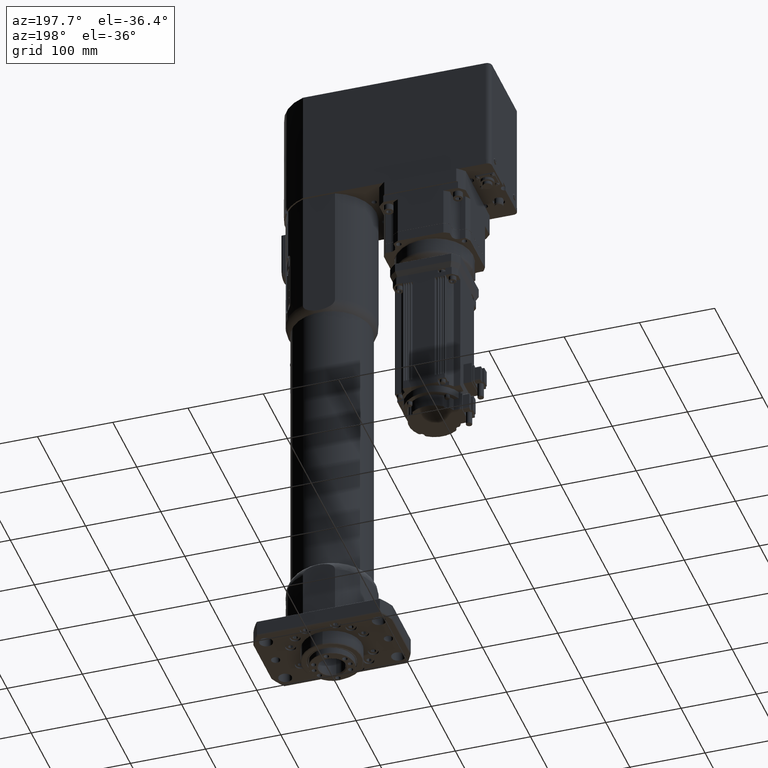
[diagram: clean part render]
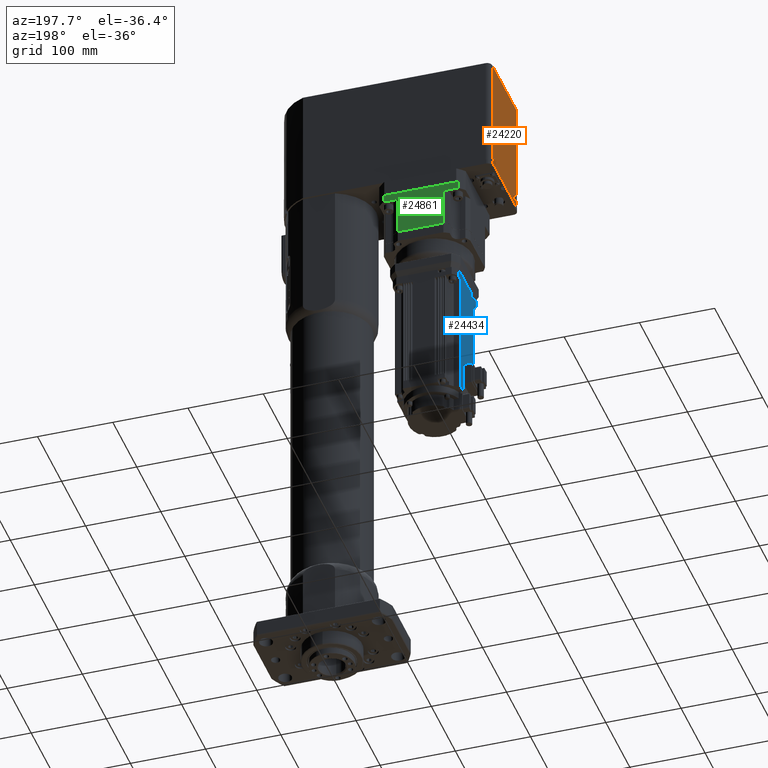
[diagram: same view with three faces highlighted in distinct colors, each labeled with its STEP entity id]
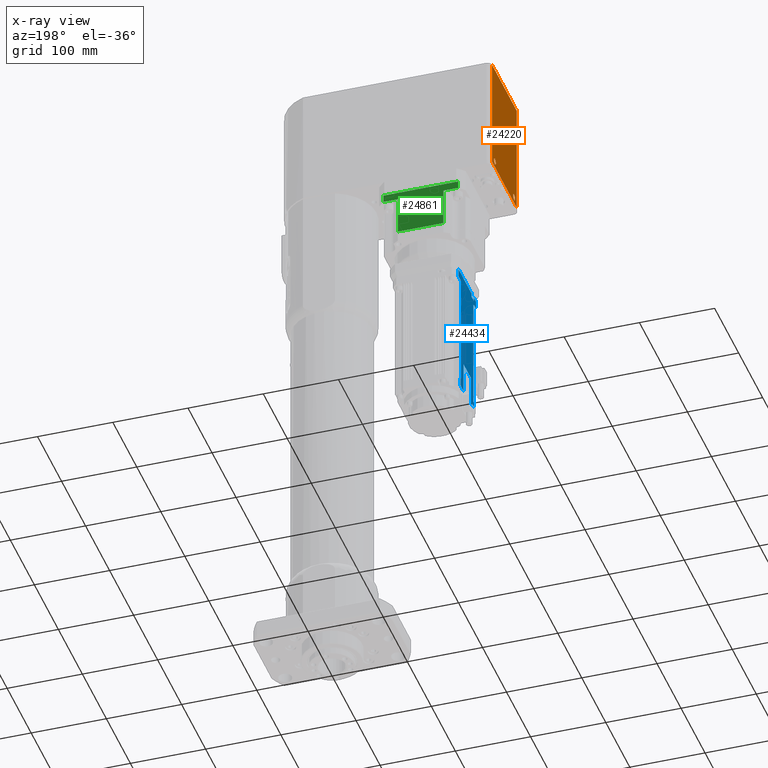
[diagram: x-ray of the same camera — body ghosted, the three highlighted faces saturated]
A machine part, auxiliary view with three faces highlighted in distinct colors.
The next image is the same camera in x-ray (body ghosted, the three faces saturated) — at least one of them is partly hidden behind the body in this view.
Their STEP definitions:

[orange] entity #24220 — the highlighted planar face has unit normal (-1, 0, 0).
#851=LINE('',#37000,#2690);
#858=LINE('',#37017,#2697);
#859=LINE('',#37020,#2698);
#860=LINE('',#37022,#2699);
#861=LINE('',#37024,#2700);
#862=LINE('',#37025,#2701);
#2690=VECTOR('',#29277,10.);
#2697=VECTOR('',#29294,10.);
#2698=VECTOR('',#29297,10.);
#2699=VECTOR('',#29298,10.);
#2700=VECTOR('',#29299,10.);
#2701=VECTOR('',#29300,10.);
#4455=PLANE('',#25982);
#5199=FACE_BOUND('',#7165,.T.);
#5200=FACE_BOUND('',#7166,.T.);
#5702=FACE_OUTER_BOUND('',#7164,.T.);
#7164=EDGE_LOOP('',(#16404,#16405,#16406,#16407,#16408,#16409));
#7165=EDGE_LOOP('',(#16410));
#7166=EDGE_LOOP('',(#16411));
#8936=CIRCLE('',#25983,4.);
#8937=CIRCLE('',#25984,4.);
#10289=VERTEX_POINT('',#36997);
#10290=VERTEX_POINT('',#36999);
#10295=VERTEX_POINT('',#37015);
#10296=VERTEX_POINT('',#37019);
#10297=VERTEX_POINT('',#37021);
#10298=VERTEX_POINT('',#37023);
#10299=VERTEX_POINT('',#37026);
#10300=VERTEX_POINT('',#37028);
#12680=EDGE_CURVE('',#10289,#10290,#851,.T.);
#12689=EDGE_CURVE('',#10295,#10289,#858,.T.);
#12690=EDGE_CURVE('',#10295,#10296,#859,.T.);
#12691=EDGE_CURVE('',#10296,#10297,#860,.T.);
#12692=EDGE_CURVE('',#10297,#10298,#861,.T.);
#12693=EDGE_CURVE('',#10298,#10290,#862,.T.);
#12694=EDGE_CURVE('',#10299,#10299,#8936,.T.);
#12695=EDGE_CURVE('',#10300,#10300,#8937,.T.);
#16404=ORIENTED_EDGE('',*,*,#12690,.T.);
#16405=ORIENTED_EDGE('',*,*,#12691,.T.);
#16406=ORIENTED_EDGE('',*,*,#12692,.T.);
#16407=ORIENTED_EDGE('',*,*,#12693,.T.);
#16408=ORIENTED_EDGE('',*,*,#12680,.F.);
#16409=ORIENTED_EDGE('',*,*,#12689,.F.);
#16410=ORIENTED_EDGE('',*,*,#12694,.T.);
#16411=ORIENTED_EDGE('',*,*,#12695,.T.);
#24220=ADVANCED_FACE('',(#5702,#5199,#5200),#4455,.T.);
#25982=AXIS2_PLACEMENT_3D('',#37018,#29295,#29296);
#25983=AXIS2_PLACEMENT_3D('',#37027,#29301,#29302);
#25984=AXIS2_PLACEMENT_3D('',#37029,#29303,#29304);
#29277=DIRECTION('',(-1.97180287814662E-12,-1.,-3.5705816722566E-28));
#29294=DIRECTION('',(3.1961401072142E-15,-6.65916933142317E-27,1.));
#29295=DIRECTION('center_axis',(-1.,1.97180287814662E-12,3.1961401072142E-15));
#29296=DIRECTION('ref_axis',(-1.97246663447004E-12,-1.,0.));
#29297=DIRECTION('',(-1.97180287814662E-12,-1.,-3.5705816722566E-28));
#29298=DIRECTION('',(-1.97180287814662E-12,-1.,-3.5705816722566E-28));
#29299=DIRECTION('',(-1.97180287814662E-12,-1.,-3.5705816722566E-28));
#29300=DIRECTION('',(3.1961401072142E-15,-6.65916933142317E-27,1.));
#29301=DIRECTION('center_axis',(1.,-1.97180287814662E-12,-3.1961401072142E-15));
#29302=DIRECTION('ref_axis',(6.49363334737654E-13,0.327803490764427,0.944745929571891));
#29303=DIRECTION('center_axis',(1.,-1.97180287814662E-12,-3.1961401072142E-15));
#29304=DIRECTION('ref_axis',(1.59379391759427E-12,0.809270043725601,-0.587436801986702));
#36997=CARTESIAN_POINT('',(-228.999999999893,50.90000000057,832.000000000005));
#36999=CARTESIAN_POINT('',(-229.000000000093,-50.8999999994297,832.000000000005));
#37000=CARTESIAN_POINT('',(-228.999999999893,50.90000000057,832.000000000005));
#37015=CARTESIAN_POINT('',(-228.999999999893,50.90000000057,680.000000000005));
#37017=CARTESIAN_POINT('',(-228.999999999893,50.90000000057,680.000000000005));
#37018=CARTESIAN_POINT('Origin',(-228.999999999893,50.90000000057,680.000000000005));
#37019=CARTESIAN_POINT('',(-229.000000000004,4.50000000056781,680.000000000005));
#37020=CARTESIAN_POINT('',(-228.999999999893,50.90000000057,680.000000000005));
#37021=CARTESIAN_POINT('',(-229.000000000022,-4.49999999943219,680.000000000005));
#37022=CARTESIAN_POINT('',(-228.999999999893,50.90000000057,680.000000000005));
#37023=CARTESIAN_POINT('',(-229.000000000094,-50.8999999994297,680.000000000005));
#37024=CARTESIAN_POINT('',(-228.999999999893,50.90000000057,680.000000000005));
#37025=CARTESIAN_POINT('',(-229.000000000094,-50.8999999994297,680.000000000005));
#37026=CARTESIAN_POINT('',(-229.00000000007,-38.6887860363888,691.778977877664));
#37027=CARTESIAN_POINT('Origin',(-229.000000000072,-39.9999999994465,687.999994159377));
#37028=CARTESIAN_POINT('',(-228.999999999908,43.2370801754447,685.650245407388));
#37029=CARTESIAN_POINT('Origin',(-228.999999999915,40.0000000005423,687.999992615335));

[blue] entity #24434 — the highlighted planar face has unit normal (-1, 0, -0).
#984=LINE('',#37418,#2823);
#987=LINE('',#37430,#2826);
#1010=LINE('',#37500,#2849);
#1013=LINE('',#37508,#2852);
#1015=LINE('',#37512,#2854);
#1308=LINE('',#38313,#3147);
#1312=LINE('',#38321,#3151);
#1320=LINE('',#38339,#3159);
#1324=LINE('',#38345,#3163);
#1325=LINE('',#38348,#3164);
#1327=LINE('',#38351,#3166);
#1328=LINE('',#38357,#3167);
#1331=LINE('',#38362,#3170);
#1345=LINE('',#38453,#3184);
#1346=LINE('',#38455,#3185);
#1347=LINE('',#38456,#3186);
#1348=LINE('',#38457,#3187);
#1349=LINE('',#38459,#3188);
#1350=LINE('',#38460,#3189);
#1351=LINE('',#38462,#3190);
#1352=LINE('',#38463,#3191);
#1353=LINE('',#38464,#3192);
#1354=LINE('',#38467,#3193);
#1355=LINE('',#38469,#3194);
#1356=LINE('',#38471,#3195);
#1357=LINE('',#38472,#3196);
#1358=LINE('',#38475,#3197);
#1359=LINE('',#38477,#3198);
#1360=LINE('',#38479,#3199);
#1361=LINE('',#38480,#3200);
#2823=VECTOR('',#29744,10.);
#2826=VECTOR('',#29755,10.);
#2849=VECTOR('',#29820,10.);
#2852=VECTOR('',#29827,10.);
#2854=VECTOR('',#29831,10.);
#3147=VECTOR('',#30526,10.);
#3151=VECTOR('',#30532,10.);
#3159=VECTOR('',#30544,10.);
#3163=VECTOR('',#30550,10.);
#3164=VECTOR('',#30553,10.);
#3166=VECTOR('',#30557,10.);
#3167=VECTOR('',#30564,10.);
#3170=VECTOR('',#30569,10.);
#3184=VECTOR('',#30671,10.);
#3185=VECTOR('',#30672,10.);
#3186=VECTOR('',#30673,10.);
#3187=VECTOR('',#30674,10.);
#3188=VECTOR('',#30675,10.);
#3189=VECTOR('',#30676,10.);
#3190=VECTOR('',#30677,10.);
#3191=VECTOR('',#30678,10.);
#3192=VECTOR('',#30679,10.);
#3193=VECTOR('',#30680,10.);
#3194=VECTOR('',#30681,10.);
#3195=VECTOR('',#30682,10.);
#3196=VECTOR('',#30683,10.);
#3197=VECTOR('',#30684,10.);
#3198=VECTOR('',#30685,10.);
#3199=VECTOR('',#30686,10.);
#3200=VECTOR('',#30687,10.);
#4628=PLANE('',#26426);
#5224=FACE_BOUND('',#7404,.T.);
#5225=FACE_BOUND('',#7405,.T.);
#5916=FACE_OUTER_BOUND('',#7403,.T.);
#7403=EDGE_LOOP('',(#17529,#17530,#17531,#17532,#17533,#17534,#17535,#17536,
#17537,#17538,#17539,#17540,#17541,#17542,#17543,#17544,#17545,#17546,#17547,
#17548,#17549,#17550));
#7404=EDGE_LOOP('',(#17551,#17552,#17553,#17554));
#7405=EDGE_LOOP('',(#17555,#17556,#17557,#17558));
#10407=VERTEX_POINT('',#37415);
#10408=VERTEX_POINT('',#37417);
#10410=VERTEX_POINT('',#37423);
#10413=VERTEX_POINT('',#37428);
#10437=VERTEX_POINT('',#37494);
#10439=VERTEX_POINT('',#37498);
#10442=VERTEX_POINT('',#37505);
#10443=VERTEX_POINT('',#37510);
#10749=VERTEX_POINT('',#38310);
#10750=VERTEX_POINT('',#38312);
#10752=VERTEX_POINT('',#38318);
#10753=VERTEX_POINT('',#38320);
#10754=VERTEX_POINT('',#38324);
#10759=VERTEX_POINT('',#38333);
#10760=VERTEX_POINT('',#38337);
#10761=VERTEX_POINT('',#38338);
#10762=VERTEX_POINT('',#38343);
#10763=VERTEX_POINT('',#38347);
#10799=VERTEX_POINT('',#38452);
#10800=VERTEX_POINT('',#38454);
#10801=VERTEX_POINT('',#38458);
#10802=VERTEX_POINT('',#38461);
#10803=VERTEX_POINT('',#38465);
#10804=VERTEX_POINT('',#38466);
#10805=VERTEX_POINT('',#38468);
#10806=VERTEX_POINT('',#38470);
#10807=VERTEX_POINT('',#38473);
#10808=VERTEX_POINT('',#38474);
#10809=VERTEX_POINT('',#38476);
#10810=VERTEX_POINT('',#38478);
#12888=EDGE_CURVE('',#10407,#10408,#984,.T.);
#12894=EDGE_CURVE('',#10410,#10413,#987,.T.);
#12928=EDGE_CURVE('',#10437,#10439,#1010,.T.);
#12932=EDGE_CURVE('',#10442,#10437,#1013,.T.);
#12934=EDGE_CURVE('',#10439,#10443,#1015,.T.);
#13334=EDGE_CURVE('',#10749,#10750,#1308,.T.);
#13338=EDGE_CURVE('',#10752,#10753,#1312,.T.);
#13346=EDGE_CURVE('',#10760,#10761,#1320,.T.);
#13350=EDGE_CURVE('',#10759,#10762,#1324,.T.);
#13351=EDGE_CURVE('',#10763,#10754,#1325,.T.);
#13353=EDGE_CURVE('',#10753,#10749,#1327,.T.);
#13356=EDGE_CURVE('',#10750,#10762,#1328,.T.);
#13359=EDGE_CURVE('',#10763,#10761,#1331,.T.);
#13406=EDGE_CURVE('',#10754,#10799,#1345,.T.);
#13407=EDGE_CURVE('',#10799,#10800,#1346,.T.);
#13408=EDGE_CURVE('',#10800,#10759,#1347,.T.);
#13409=EDGE_CURVE('',#10408,#10752,#1348,.T.);
#13410=EDGE_CURVE('',#10407,#10801,#1349,.T.);
#13411=EDGE_CURVE('',#10801,#10442,#1350,.T.);
#13412=EDGE_CURVE('',#10443,#10802,#1351,.T.);
#13413=EDGE_CURVE('',#10802,#10410,#1352,.T.);
#13414=EDGE_CURVE('',#10760,#10413,#1353,.T.);
#13415=EDGE_CURVE('',#10803,#10804,#1354,.T.);
#13416=EDGE_CURVE('',#10805,#10804,#1355,.T.);
#13417=EDGE_CURVE('',#10806,#10805,#1356,.T.);
#13418=EDGE_CURVE('',#10803,#10806,#1357,.T.);
#13419=EDGE_CURVE('',#10807,#10808,#1358,.T.);
#13420=EDGE_CURVE('',#10809,#10808,#1359,.T.);
#13421=EDGE_CURVE('',#10810,#10809,#1360,.T.);
#13422=EDGE_CURVE('',#10807,#10810,#1361,.T.);
#17529=ORIENTED_EDGE('',*,*,#13406,.T.);
#17530=ORIENTED_EDGE('',*,*,#13407,.T.);
#17531=ORIENTED_EDGE('',*,*,#13408,.T.);
#17532=ORIENTED_EDGE('',*,*,#13350,.T.);
#17533=ORIENTED_EDGE('',*,*,#13356,.F.);
#17534=ORIENTED_EDGE('',*,*,#13334,.F.);
#17535=ORIENTED_EDGE('',*,*,#13353,.F.);
#17536=ORIENTED_EDGE('',*,*,#13338,.F.);
#17537=ORIENTED_EDGE('',*,*,#13409,.F.);
#17538=ORIENTED_EDGE('',*,*,#12888,.F.);
#17539=ORIENTED_EDGE('',*,*,#13410,.T.);
#17540=ORIENTED_EDGE('',*,*,#13411,.T.);
#17541=ORIENTED_EDGE('',*,*,#12932,.T.);
#17542=ORIENTED_EDGE('',*,*,#12928,.T.);
#17543=ORIENTED_EDGE('',*,*,#12934,.T.);
#17544=ORIENTED_EDGE('',*,*,#13412,.T.);
#17545=ORIENTED_EDGE('',*,*,#13413,.T.);
#17546=ORIENTED_EDGE('',*,*,#12894,.T.);
#17547=ORIENTED_EDGE('',*,*,#13414,.F.);
#17548=ORIENTED_EDGE('',*,*,#13346,.T.);
#17549=ORIENTED_EDGE('',*,*,#13359,.F.);
#17550=ORIENTED_EDGE('',*,*,#13351,.T.);
#17551=ORIENTED_EDGE('',*,*,#13415,.T.);
#17552=ORIENTED_EDGE('',*,*,#13416,.F.);
#17553=ORIENTED_EDGE('',*,*,#13417,.F.);
#17554=ORIENTED_EDGE('',*,*,#13418,.F.);
#17555=ORIENTED_EDGE('',*,*,#13419,.T.);
#17556=ORIENTED_EDGE('',*,*,#13420,.F.);
#17557=ORIENTED_EDGE('',*,*,#13421,.F.);
#17558=ORIENTED_EDGE('',*,*,#13422,.F.);
#24434=ADVANCED_FACE('',(#5916,#5224,#5225),#4628,.T.);
#26426=AXIS2_PLACEMENT_3D('',#38451,#30669,#30670);
#29744=DIRECTION('',(2.26052957917011E-15,-4.93038065763132E-31,-1.));
#29755=DIRECTION('',(2.26052957917011E-15,-4.93038065763132E-31,-1.));
#29820=DIRECTION('',(1.43720279024793E-12,1.,3.24833199247382E-27));
#29827=DIRECTION('',(2.26052957917011E-15,-4.93038065763132E-31,-1.));
#29831=DIRECTION('',(-2.26052957917011E-15,4.93038065763132E-31,1.));
#30526=DIRECTION('',(2.26052957917011E-15,-4.93038065763132E-31,-1.));
#30532=DIRECTION('',(2.26052957917011E-15,-4.93038065763132E-31,-1.));
#30544=DIRECTION('',(2.26052957917011E-15,-4.93038065763132E-31,-1.));
#30550=DIRECTION('',(2.26052957917011E-15,-4.93038065763132E-31,-1.));
#30553=DIRECTION('',(-2.26052957917011E-15,4.93038065763132E-31,1.));
#30557=DIRECTION('',(1.43784983919202E-12,1.,3.24981110667111E-27));
#30564=DIRECTION('',(1.43188635551689E-12,1.,3.2363018636692E-27));
#30569=DIRECTION('',(1.43755377971879E-12,1.,3.24912085337904E-27));
#30669=DIRECTION('center_axis',(-1.,1.43720279024793E-12,-2.26052957917011E-15));
#30670=DIRECTION('ref_axis',(1.43813849717844E-12,1.,0.));
#30671=DIRECTION('',(-2.26052957917011E-15,2.95822839457879E-31,1.));
#30672=DIRECTION('',(-1.43720279024793E-12,-1.,5.92118946463502E-16));
#30673=DIRECTION('',(2.26052957917011E-15,-2.95822839457879E-31,-1.));
#30674=DIRECTION('',(1.43720279024793E-12,1.,3.24833199247382E-27));
#30675=DIRECTION('',(1.43720279024793E-12,1.,3.24833199247382E-27));
#30676=DIRECTION('',(1.43720279024793E-12,1.,3.24833199247382E-27));
#30677=DIRECTION('',(1.43720279024793E-12,1.,3.24833199247382E-27));
#30678=DIRECTION('',(1.43720279024793E-12,1.,3.24833199247382E-27));
#30679=DIRECTION('',(1.43720279024793E-12,1.,3.24833199247382E-27));
#30680=DIRECTION('',(-1.43720279024793E-12,-1.,-3.24852920770013E-27));
#30681=DIRECTION('',(-2.26052957923362E-15,-4.41912301958641E-14,1.));
#30682=DIRECTION('',(-1.43720279024793E-12,-1.,-3.24852920770013E-27));
#30683=DIRECTION('',(2.26052957910049E-15,-4.84434569437748E-14,-1.));
#30684=DIRECTION('',(1.43720279024793E-12,1.,3.24852920770013E-27));
#30685=DIRECTION('',(2.2605295791062E-15,-4.44669718621109E-14,-1.));
#30686=DIRECTION('',(1.43720279024793E-12,1.,3.24852920770013E-27));
#30687=DIRECTION('',(-2.26052957923936E-15,-4.81822279968042E-14,1.));
#37415=CARTESIAN_POINT('',(-179.500000000063,-36.834087473015,532.500000000004));
#37417=CARTESIAN_POINT('',(-179.500000000063,-36.834087473015,521.500000000005));
#37418=CARTESIAN_POINT('',(-179.500000000063,-36.834087473015,532.500000000004));
#37423=CARTESIAN_POINT('',(-179.499999999957,36.834087473837,532.500000000004));
#37428=CARTESIAN_POINT('',(-179.499999999957,36.834087473837,521.500000000004));
#37430=CARTESIAN_POINT('',(-179.499999999957,36.834087473837,532.500000000004));
#37494=CARTESIAN_POINT('',(-179.500000000051,-28.499999999589,527.500000000004));
#37498=CARTESIAN_POINT('',(-179.500000000036,-18.499999999589,527.500000000004));
#37500=CARTESIAN_POINT('',(-179.500000000053,-30.167043736302,527.500000000004));
#37505=CARTESIAN_POINT('',(-179.500000000051,-28.499999999589,532.500000000004));
#37508=CARTESIAN_POINT('',(-179.500000000051,-28.499999999589,532.500000000004));
#37510=CARTESIAN_POINT('',(-179.500000000036,-18.499999999589,532.500000000004));
#37512=CARTESIAN_POINT('',(-179.500000000036,-18.499999999589,532.500000000004));
#38310=CARTESIAN_POINT('',(-179.500000000036,-18.499999999589,360.500000000005));
#38312=CARTESIAN_POINT('',(-179.500000000036,-18.499999999589,355.500000000005));
#38313=CARTESIAN_POINT('',(-179.500000000036,-18.499999999589,367.500000000004));
#38318=CARTESIAN_POINT('',(-179.500000000051,-28.499999999589,521.500000000005));
#38320=CARTESIAN_POINT('',(-179.50000000005,-28.499999999589,360.500000000005));
#38321=CARTESIAN_POINT('',(-179.50000000005,-28.499999999589,367.500000000005));
#38324=CARTESIAN_POINT('',(-179.499999999988,15.000000000411,367.500000000005));
#38333=CARTESIAN_POINT('',(-179.500000000031,-14.999999999589,367.500000000004));
#38337=CARTESIAN_POINT('',(-179.499999999969,28.500000000411,521.500000000004));
#38338=CARTESIAN_POINT('',(-179.499999999968,28.500000000411,355.500000000005));
#38339=CARTESIAN_POINT('',(-179.499999999969,28.500000000411,521.500000000004));
#38343=CARTESIAN_POINT('',(-179.500000000031,-14.999999999589,355.500000000005));
#38345=CARTESIAN_POINT('',(-179.500000000031,-14.999999999589,367.500000000004));
#38347=CARTESIAN_POINT('',(-179.499999999988,15.000000000411,355.500000000005));
#38348=CARTESIAN_POINT('',(-179.499999999988,15.000000000411,367.500000000005));
#38351=CARTESIAN_POINT('',(-179.50000000005,-28.499999999589,360.500000000005));
#38357=CARTESIAN_POINT('',(-179.500000000036,-18.499999999589,355.500000000005));
#38362=CARTESIAN_POINT('',(-179.500000000031,-14.999999999589,355.500000000005));
#38451=CARTESIAN_POINT('Origin',(-179.500000000063,-36.834087473015,532.500000000004));
#38452=CARTESIAN_POINT('',(-179.499999999988,15.0000000004109,397.500000000004));
#38453=CARTESIAN_POINT('',(-179.499999999988,15.0000000004109,465.000000000004));
#38454=CARTESIAN_POINT('',(-179.500000000031,-14.9999999995891,397.500000000004));
#38455=CARTESIAN_POINT('',(-179.500000000047,-25.9170437363021,397.500000000005));
#38456=CARTESIAN_POINT('',(-179.500000000031,-14.9999999995891,450.000000000004));
#38457=CARTESIAN_POINT('',(-179.500000000063,-36.834087473015,521.500000000005));
#38458=CARTESIAN_POINT('',(-179.500000000057,-35.2668399487462,532.500000000005));
#38459=CARTESIAN_POINT('',(-179.500000000063,-36.834087473015,532.500000000004));
#38460=CARTESIAN_POINT('',(-179.500000000063,-36.834087473015,532.500000000004));
#38461=CARTESIAN_POINT('',(-179.499999999956,35.2668399495738,532.500000000005));
#38462=CARTESIAN_POINT('',(-179.500000000063,-36.834087473015,532.500000000004));
#38463=CARTESIAN_POINT('',(-179.500000000063,-36.834087473015,532.500000000004));
#38464=CARTESIAN_POINT('',(-179.500000000063,-36.834087473015,521.500000000005));
#38465=CARTESIAN_POINT('',(-179.500000000047,-25.9999999995808,520.500000000005));
#38466=CARTESIAN_POINT('',(-179.50000000005,-27.9999999996027,520.500000000005));
#38467=CARTESIAN_POINT('',(-179.500000000055,-31.6670437362979,520.500000000005));
#38468=CARTESIAN_POINT('',(-179.50000000005,-27.9999999995959,367.500000000005));
#38469=CARTESIAN_POINT('',(-179.50000000005,-27.9999999996029,526.500000000005));
#38470=CARTESIAN_POINT('',(-179.500000000047,-25.9999999995882,367.500000000005));
#38471=CARTESIAN_POINT('',(-179.500000000056,-32.1670437363055,367.500000000005));
#38472=CARTESIAN_POINT('',(-179.500000000047,-25.9999999995842,450.000000000004));
#38473=CARTESIAN_POINT('',(-179.499999999972,26.0000000004101,367.500000000005));
#38474=CARTESIAN_POINT('',(-179.499999999969,28.0000000004178,367.500000000005));
#38475=CARTESIAN_POINT('',(-179.500000000017,-5.16704373630249,367.500000000004));
#38476=CARTESIAN_POINT('',(-179.49999999997,28.0000000004246,520.500000000005));
#38477=CARTESIAN_POINT('',(-179.499999999969,28.0000000004215,450.000000000003));
#38478=CARTESIAN_POINT('',(-179.499999999972,26.0000000004027,520.500000000005));
#38479=CARTESIAN_POINT('',(-179.500000000016,-4.66704373629521,520.500000000004));
#38480=CARTESIAN_POINT('',(-179.499999999972,26.0000000004024,526.500000000006));

[green] entity #24861 — the highlighted planar face has unit normal (0, 1, 0).
#979=LINE('',#37372,#2818);
#1802=LINE('',#40548,#3641);
#1806=LINE('',#40570,#3645);
#1810=LINE('',#40587,#3649);
#1823=LINE('',#40639,#3662);
#1824=LINE('',#40641,#3663);
#1825=LINE('',#40642,#3664);
#1826=LINE('',#40643,#3665);
#2818=VECTOR('',#29697,10.);
#3641=VECTOR('',#32556,60.62177826491);
#3645=VECTOR('',#32578,19.38569022669);
#3649=VECTOR('',#32592,19.38569022669);
#3662=VECTOR('',#32637,10.);
#3663=VECTOR('',#32640,10.);
#3664=VECTOR('',#32641,51.);
#3665=VECTOR('',#32642,51.);
#4825=PLANE('',#27171);
#6343=FACE_OUTER_BOUND('',#7904,.T.);
#7904=EDGE_LOOP('',(#19602,#19603,#19604,#19605,#19606,#19607,#19608,#19609));
#10374=VERTEX_POINT('',#37315);
#10386=VERTEX_POINT('',#37355);
#11258=VERTEX_POINT('',#40545);
#11259=VERTEX_POINT('',#40547);
#11267=VERTEX_POINT('',#40567);
#11268=VERTEX_POINT('',#40569);
#11275=VERTEX_POINT('',#40585);
#11276=VERTEX_POINT('',#40586);
#12865=EDGE_CURVE('',#10386,#10374,#979,.T.);
#14223=EDGE_CURVE('',#11258,#11259,#1802,.T.);
#14232=EDGE_CURVE('',#11267,#11268,#1806,.T.);
#14240=EDGE_CURVE('',#11275,#11276,#1810,.T.);
#14266=EDGE_CURVE('',#10374,#11267,#1823,.T.);
#14267=EDGE_CURVE('',#10386,#11276,#1824,.T.);
#14268=EDGE_CURVE('',#11259,#11275,#1825,.T.);
#14269=EDGE_CURVE('',#11258,#11268,#1826,.T.);
#19602=ORIENTED_EDGE('',*,*,#14232,.F.);
#19603=ORIENTED_EDGE('',*,*,#14266,.F.);
#19604=ORIENTED_EDGE('',*,*,#12865,.F.);
#19605=ORIENTED_EDGE('',*,*,#14267,.T.);
#19606=ORIENTED_EDGE('',*,*,#14240,.F.);
#19607=ORIENTED_EDGE('',*,*,#14268,.F.);
#19608=ORIENTED_EDGE('',*,*,#14223,.F.);
#19609=ORIENTED_EDGE('',*,*,#14269,.T.);
#24861=ADVANCED_FACE('',(#6343),#4825,.T.);
#27171=AXIS2_PLACEMENT_3D('',#40640,#32638,#32639);
#29697=DIRECTION('',(-1.,1.43319384138248E-12,-1.73226376857313E-16));
#32556=DIRECTION('',(1.,-1.43319384138248E-12,1.9899373235139E-15));
#32578=DIRECTION('',(1.,-1.43319384138248E-12,1.9899373235139E-15));
#32592=DIRECTION('',(1.,-1.43319384138248E-12,1.9899373235139E-15));
#32637=DIRECTION('',(1.9899373235139E-15,1.97215226305253E-31,-1.));
#32638=DIRECTION('center_axis',(1.43319384138248E-12,1.,2.85212660282657E-27));
#32639=DIRECTION('ref_axis',(1.,-1.4352963262354E-12,0.));
#32640=DIRECTION('',(1.9899373235139E-15,1.97215226305253E-31,-1.));
#32641=DIRECTION('',(-1.9899373235139E-15,-3.0935721773373E-31,1.));
#32642=DIRECTION('',(-1.9899373235139E-15,-3.0935721773373E-31,1.));
#37315=CARTESIAN_POINT('',(-185.696579359075,57.5000000004227,654.000000000005));
#37355=CARTESIAN_POINT('',(-86.3034206407746,57.5000000002803,654.000000000005));
#37372=CARTESIAN_POINT('',(-160.848289679499,57.5000000003871,654.000000000005));
#40545=CARTESIAN_POINT('',(-166.310889132384,57.5000000003949,593.000000000005));
#40547=CARTESIAN_POINT('',(-105.689110867465,57.5000000003081,593.000000000005));
#40548=CARTESIAN_POINT('',(-166.310889132384,57.5000000003949,593.000000000005));
#40567=CARTESIAN_POINT('',(-185.696579359075,57.5000000004227,644.000000000005));
#40569=CARTESIAN_POINT('',(-166.310889132385,57.5000000003949,644.000000000005));
#40570=CARTESIAN_POINT('',(-185.696579359075,57.5000000004227,644.000000000005));
#40585=CARTESIAN_POINT('',(-105.689110867465,57.5000000003081,644.000000000005));
#40586=CARTESIAN_POINT('',(-86.3034206407746,57.5000000002803,644.000000000005));
#40587=CARTESIAN_POINT('',(-105.689110867465,57.5000000003081,644.000000000005));
#40639=CARTESIAN_POINT('',(-185.696579359075,57.5000000004227,654.000000000005));
#40640=CARTESIAN_POINT('Origin',(-185.696579359075,57.5000000004227,654.000000000005));
#40641=CARTESIAN_POINT('',(-86.3034206407746,57.5000000002803,654.000000000005));
#40642=CARTESIAN_POINT('',(-105.689110867465,57.5000000003081,593.000000000005));
#40643=CARTESIAN_POINT('',(-166.310889132384,57.5000000003949,593.000000000005));